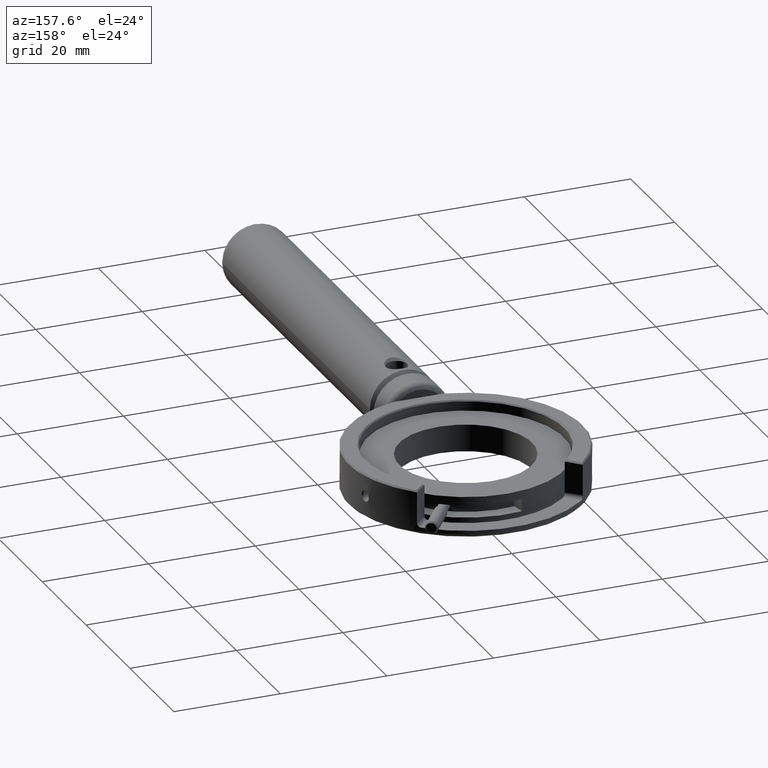
[diagram: clean part render]
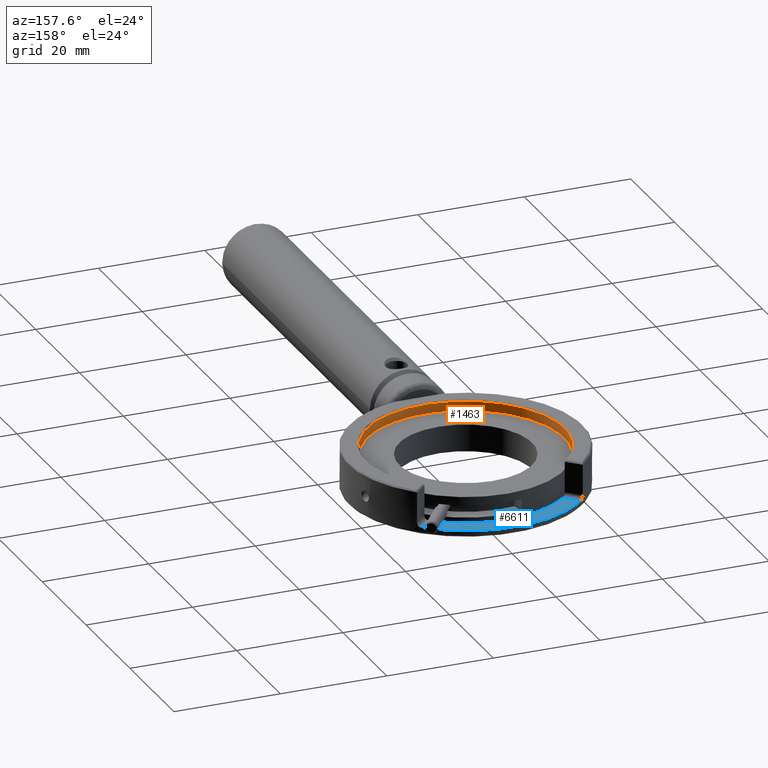
[diagram: same view with the hole feature highlighted: cylindrical wall and planar end face, labeled with their STEP entity ids]
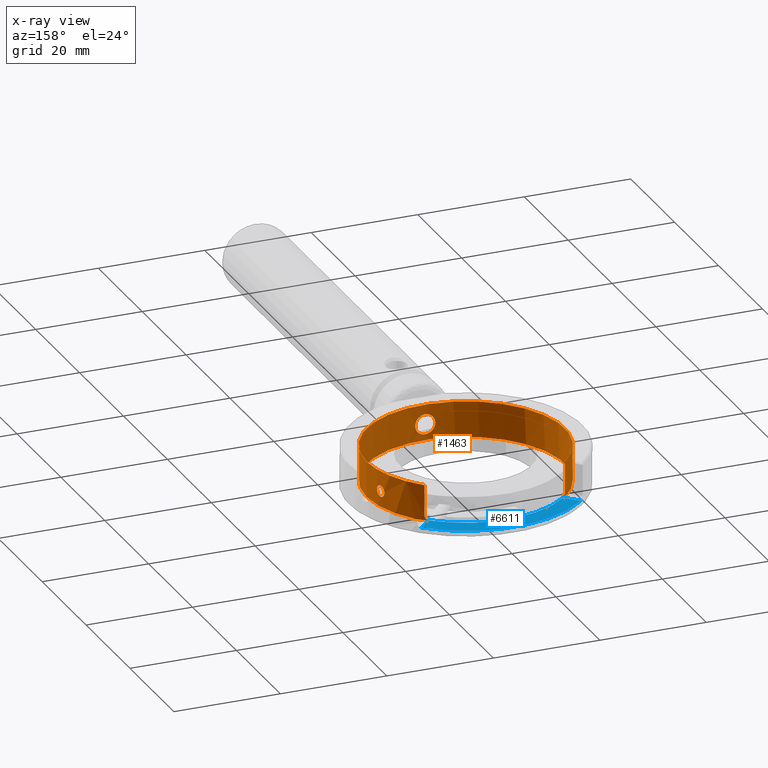
[diagram: x-ray of the same camera — body ghosted, the hole faces saturated]
A machine part, auxiliary view. The highlighted faces form one hole feature of diameter 37.25 mm: the cylindrical wall (entity #1463, orange) and its adjacent planar end face (entity #6611, blue) — they share a circular edge in the B-rep.
The next image is the same camera in x-ray (body ghosted, the hole faces saturated) — the bore reads through the body.
Wall:
#2 = CARTESIAN_POINT ( 'NONE',  ( -18.18903566513872150, 62.83797185100250005, -0.2718343175253222777 ) ) ;
#90 = CARTESIAN_POINT ( 'NONE',  ( -1.493598881237906850, 40.43781706722261760, 1.154478071732000677 ) ) ;
#112 = CARTESIAN_POINT ( 'NONE',  ( -17.69285917023473687, 64.71003680628408006, -0.5450800826894649509 ) ) ;
#126 = B_SPLINE_CURVE_WITH_KNOTS ( 'NONE', 3,
 ( #4490, #5595, #721, #1322, #389, #255, #2989, #6236 ),
 .UNSPECIFIED., .F., .F.,
 ( 4, 2, 2, 4 ),
 ( 0.000000000000000000, 0.0002929533739143705341, 0.0005859067478287410683, 0.001171813495657500785 ),
 .UNSPECIFIED. ) ;
#154 = ORIENTED_EDGE ( 'NONE', *, *, #816, .F. ) ;
#190 = B_SPLINE_CURVE_WITH_KNOTS ( 'NONE', 3,
 ( #3878, #6516, #649, #3913, #2769, #3806, #6090, #2697, #4377, #4874, #5482, #4337, #3380, #1211, #539, #1741, #2, #2840, #2160, #1175, #4981, #5984, #1709, #3272, #4910, #1673, #1102, #112, #1139, #2304 ),
 .UNSPECIFIED., .T., .F.,
 ( 4, 2, 2, 2, 2, 2, 2, 2, 2, 2, 2, 2, 2, 2, 4 ),
 ( 0.000000000000000000, 0.0004075500732926252913, 0.0008151001465852505826, 0.001222650219877875711, 0.001630200293170501165, 0.002037750366463126402, 0.002445300439755751423, 0.003260400586341003198, 0.003667950659633628218, 0.004075500732926253672, 0.004483050806218878692, 0.004890600879511503712, 0.005298150952804129600, 0.005705701026096754620, 0.006520801172682035018 ),
 .UNSPECIFIED. ) ;
#255 = CARTESIAN_POINT ( 'NONE',  ( 13.14876128136733513, 72.22775169575534449, -2.442323651602798851 ) ) ;
#389 = CARTESIAN_POINT ( 'NONE',  ( 13.00023674608519464, 72.37280933934376037, -2.649717255482476830 ) ) ;
#395 = CARTESIAN_POINT ( 'NONE',  ( -13.11979043504704912, 72.18366598657144095, -2.246255909490364466 ) ) ;
#421 = CARTESIAN_POINT ( 'NONE',  ( -1.687117925939663809, 40.45485000283076715, -0.8368279701109370139 ) ) ;
#476 = CARTESIAN_POINT ( 'NONE',  ( -1.148054761256436462, 40.41241583791327230, 1.506858112928590510 ) ) ;
#479 = CARTESIAN_POINT ( 'NONE',  ( 18.26698131764925392, 62.81225203399079504, -0.001122175928722145624 ) ) ;
#492 = CARTESIAN_POINT ( 'NONE',  ( 0.1265221551106720244, 40.37480044073441121, -1.899909461258234566 ) ) ;
#496 = CIRCLE ( 'NONE', #2664, 18.62500000000000355 ) ;
#515 = CARTESIAN_POINT ( 'NONE',  ( -1.629227357032124957, 40.44949484249324456, 0.9474612694294081150 ) ) ;
#518 = CARTESIAN_POINT ( 'NONE',  ( 17.85043235880006307, 64.43661301889852666, -0.8364481478037708584 ) ) ;
#533 = CARTESIAN_POINT ( 'NONE',  ( 1.875467317419478253, 40.46602775634175941, -0.1207899398548696879 ) ) ;
#539 = CARTESIAN_POINT ( 'NONE',  ( -18.19430068289457836, 62.81253746879902877, 0.2767238134697624363 ) ) ;
#557 = CARTESIAN_POINT ( 'NONE',  ( 18.26701105909840450, 62.81210980662360299, 0.1366850002386902907 ) ) ;
#587 = CARTESIAN_POINT ( 'NONE',  ( -13.13355332614390747, 72.16986379959939768, 3.749999999999995559 ) ) ;
#625 = CARTESIAN_POINT ( 'NONE',  ( -0.9446250207710485958, 40.40057066606562586, 1.645620153697293198 ) ) ;
#629 = CARTESIAN_POINT ( 'NONE',  ( 18.06136347873978920, 63.69111709359957985, -1.050266886668898891 ) ) ;
#649 = CARTESIAN_POINT ( 'NONE',  ( -17.66628890700315679, 64.78888973563346099, 0.2718428124325545370 ) ) ;
#721 = CARTESIAN_POINT ( 'NONE',  ( 12.80886262418664856, 72.55583943451092921, -2.780538200181480679 ) ) ;
#766 = CARTESIAN_POINT ( 'NONE',  ( 18.26698131764925392, 62.81225203399078083, -0.001122175928722213278 ) ) ;
#816 = EDGE_CURVE ( 'NONE', #5098, #5098, #3506, .T. ) ;
#835 = CARTESIAN_POINT ( 'NONE',  ( -17.65803962264381965, 64.81382831503192676, -0.001122175928721345917 ) ) ;
#893 = DIRECTION ( 'NONE',  ( 1.000000000000000000, -1.862790309773752312E-15, 0.000000000000000000 ) ) ;
#916 = CARTESIAN_POINT ( 'NONE',  ( 0.9480742903353519546, 40.39705329811793177, -1.644125691522554167 ) ) ;
#949 = CARTESIAN_POINT ( 'NONE',  ( -1.416881517711991556, 40.43157448648918262, -1.249939383187935737 ) ) ;
#950 = EDGE_LOOP ( 'NONE', ( #154 ) ) ;
#962 = VECTOR ( 'NONE', #6245, 1000.000000000000000 ) ;
#963 = CARTESIAN_POINT ( 'NONE',  ( -13.13355332614390747, 72.16986379959939768, -2.049999999999999378 ) ) ;
#966 = CARTESIAN_POINT ( 'NONE',  ( 0.03631047345558670314, 59.00000000000000000, -2.799999999999999378 ) ) ;
#987 = DIRECTION ( 'NONE',  ( 1.000000000000000000, 0.000000000000000000, 0.000000000000000000 ) ) ;
#1010 = CARTESIAN_POINT ( 'NONE',  ( 18.26692183475095987, 62.81253648872515782, -0.2767365282635472212 ) ) ;
#1022 = CARTESIAN_POINT ( 'NONE',  ( 1.147289151250855177, 40.40788308457158706, 1.508248036965813110 ) ) ;
#1058 = CARTESIAN_POINT ( 'NONE',  ( 1.779830277740764188, 40.45672808304190227, 0.6111520728852752882 ) ) ;
#1085 = CARTESIAN_POINT ( 'NONE',  ( 17.76547183828884258, 64.71006350925047457, 0.5450458191778911887 ) ) ;
#1102 = CARTESIAN_POINT ( 'NONE',  ( -17.77886321414629478, 64.43318961352768781, -0.8395066714681195252 ) ) ;
#1108 = ORIENTED_EDGE ( 'NONE', *, *, #2336, .F. ) ;
#1139 = CARTESIAN_POINT ( 'NONE',  ( -17.65813033630994866, 64.81355222855670206, -0.2767365282634193790 ) ) ;
#1147 = LINE ( 'NONE', #2780, #2205 ) ;
#1152 = CARTESIAN_POINT ( 'NONE',  ( -1.687156400982932514, 40.45485390088452249, 0.8366930723316864382 ) ) ;
#1155 = CARTESIAN_POINT ( 'NONE',  ( 17.88471660271046559, 64.32361633450146599, 0.9170588017128735725 ) ) ;
#1175 = CARTESIAN_POINT ( 'NONE',  ( -18.10947813481439184, 63.19881595776065097, -0.8364481478034490047 ) ) ;
#1211 = CARTESIAN_POINT ( 'NONE',  ( -18.17262541090879324, 62.91952062618339170, 0.5450458191785471085 ) ) ;
#1322 = CARTESIAN_POINT ( 'NONE',  ( 12.94043886982135128, 72.43064933454419929, -2.705363686045393568 ) ) ;
#1365 = VERTEX_POINT ( 'NONE', #835 ) ;
#1398 = CARTESIAN_POINT ( 'NONE',  ( -0.001334091296591290296, 40.37503804334770763, 1.899993746880941581 ) ) ;
#1435 = FACE_OUTER_BOUND ( 'NONE', #4163, .T. ) ;
#1463 = ADVANCED_FACE ( 'NONE', ( #2554, #1435, #4731, #3603, #6911 ), #3663, .F. ) ;
#1486 = CARTESIAN_POINT ( 'NONE',  ( 1.501934228834519436, 40.43195197886504388, 1.164475768243369291 ) ) ;
#1487 = ORIENTED_EDGE ( 'NONE', *, *, #4953, .F. ) ;
#1524 = CARTESIAN_POINT ( 'NONE',  ( 1.496394489365336478, 40.43219645749135793, -1.151939983931909106 ) ) ;
#1546 = CARTESIAN_POINT ( 'NONE',  ( 18.24524017603741299, 62.91954789105880508, -0.5450800826893120732 ) ) ;
#1582 = CARTESIAN_POINT ( 'NONE',  ( 18.24018591345191354, 62.93855153088535559, 0.5254526055875672341 ) ) ;
#1596 = CARTESIAN_POINT ( 'NONE',  ( 1.243466138589879533, 40.41396064173407154, 1.427773043486582294 ) ) ;
#1615 = CARTESIAN_POINT ( 'NONE',  ( -0.001334091296591175153, 40.37503804334771473, 1.899993746880941581 ) ) ;
#1673 = CARTESIAN_POINT ( 'NONE',  ( -17.81209746520803350, 64.32360987938156427, -0.9170492980598287103 ) ) ;
#1709 = CARTESIAN_POINT ( 'NONE',  ( -17.98976151545100421, 63.68720002559373228, -1.049729123360207961 ) ) ;
#1741 = CARTESIAN_POINT ( 'NONE',  ( -18.19439021388780020, 62.81210932027876481, -0.1366769748553796071 ) ) ;
#1893 = EDGE_CURVE ( 'NONE', #6206, #4440, #1147, .T. ) ;
#1907 = ORIENTED_EDGE ( 'NONE', *, *, #6379, .F. ) ;
#1990 = CARTESIAN_POINT ( 'NONE',  ( -13.06643057872880753, 72.23669962186897919, -2.427850749201086344 ) ) ;
#2010 = CARTESIAN_POINT ( 'NONE',  ( 1.863262584512247910, 40.46480528269892574, 0.2482103454169145296 ) ) ;
#2034 = CARTESIAN_POINT ( 'NONE',  ( 0.03631047345558670314, 59.00000000000000000, 3.749999999999992895 ) ) ;
#2045 = CARTESIAN_POINT ( 'NONE',  ( 1.815644897308881234, 40.46017351126361916, 0.4914196852226878076 ) ) ;
#2083 = CARTESIAN_POINT ( 'NONE',  ( 0.2514241880328192402, 40.37585009341874098, -1.887042023731392293 ) ) ;
#2088 = CIRCLE ( 'NONE', #6653, 18.62500000000000355 ) ;
#2120 = CARTESIAN_POINT ( 'NONE',  ( 0.4873917369635250574, 40.38007229320815128, 1.839027725005202285 ) ) ;
#2156 = EDGE_CURVE ( 'NONE', #6612, #4440, #126, .T. ) ;
#2160 = CARTESIAN_POINT ( 'NONE',  ( -18.15147889822096516, 63.01298111566647009, -0.6417790687990692078 ) ) ;
#2205 = VECTOR ( 'NONE', #3316, 1000.000000000000000 ) ;
#2248 = CARTESIAN_POINT ( 'NONE',  ( -0.4893539804623329714, 40.38203037132173989, 1.838217170314532911 ) ) ;
#2304 = CARTESIAN_POINT ( 'NONE',  ( -17.65803962264381965, 64.81382831503191255, -0.001122175928721521991 ) ) ;
#2336 = EDGE_CURVE ( 'NONE', #2498, #6612, #3687, .T. ) ;
#2422 = CARTESIAN_POINT ( 'NONE',  ( 18.66131047345558613, 59.00000000000000000, -2.999999999999999556 ) ) ;
#2498 = VERTEX_POINT ( 'NONE', #3657 ) ;
#2539 = CARTESIAN_POINT ( 'NONE',  ( -0.1230512113425770160, 40.37526374352130887, -1.900078957785468425 ) ) ;
#2554 = FACE_OUTER_BOUND ( 'NONE', #4988, .T. ) ;
#2575 = CARTESIAN_POINT ( 'NONE',  ( -1.779838628781134746, 40.46370057687364863, -0.6083153984944333903 ) ) ;
#2611 = DIRECTION ( 'NONE',  ( -0.000000000000000000, -0.000000000000000000, 1.000000000000000000 ) ) ;
#2622 = ORIENTED_EDGE ( 'NONE', *, *, #6646, .F. ) ;
#2634 = CARTESIAN_POINT ( 'NONE',  ( 18.18210340076006304, 63.19879709334022522, 0.8364320505304182474 ) ) ;
#2651 = CARTESIAN_POINT ( 'NONE',  ( -1.156601835759687447, 40.41242734302039707, -1.515672166492228357 ) ) ;
#2664 = AXIS2_PLACEMENT_3D ( 'NONE', #2691, #2611, #987 ) ;
#2687 = EDGE_LOOP ( 'NONE', ( #1907 ) ) ;
#2691 = CARTESIAN_POINT ( 'NONE',  ( 0.03631047345558670314, 59.00000000000000000, -2.999999999999999556 ) ) ;
#2697 = CARTESIAN_POINT ( 'NONE',  ( -17.88125217308938275, 64.08598229579749272, 1.021542227904479239 ) ) ;
#2714 = CARTESIAN_POINT ( 'NONE',  ( 17.95509027215466702, 64.08171454900100628, 1.022854013593600175 ) ) ;
#2769 = CARTESIAN_POINT ( 'NONE',  ( -17.72126713156678335, 64.61855280239166177, 0.6417735202499825764 ) ) ;
#2780 = CARTESIAN_POINT ( 'NONE',  ( 13.20617427305508329, 72.16986379959939768, -2.799999999999999378 ) ) ;
#2786 = CARTESIAN_POINT ( 'NONE',  ( -0.1261248555550038009, 40.37529026904443441, 1.899871533584694294 ) ) ;
#2802 = VERTEX_POINT ( 'NONE', #4948 ) ;
#2840 = CARTESIAN_POINT ( 'NONE',  ( -18.16756298829855965, 62.93856075097302494, -0.5254780502361294792 ) ) ;
#2871 = DIRECTION ( 'NONE',  ( 0.000000000000000000, 0.000000000000000000, -1.000000000000000000 ) ) ;
#2989 = CARTESIAN_POINT ( 'NONE',  ( 13.20617427305508329, 72.16986379959939768, -2.248113430152316017 ) ) ;
#2993 = CARTESIAN_POINT ( 'NONE',  ( -13.02686749316725567, 72.27587242043038884, -2.511025429269050591 ) ) ;
#3065 = DIRECTION ( 'NONE',  ( 1.000000000000000000, 0.000000000000000000, 0.000000000000000000 ) ) ;
#3082 = CARTESIAN_POINT ( 'NONE',  ( 0.8383245082285857297, 40.39192670097741455, -1.704314953015048761 ) ) ;
#3119 = CARTESIAN_POINT ( 'NONE',  ( 0.6072766082502302210, 40.38340492199187537, 1.802071046590317360 ) ) ;
#3174 = CARTESIAN_POINT ( 'NONE',  ( -0.6087401093063735669, 40.38582362619482069, 1.801247005563673564 ) ) ;
#3177 = CARTESIAN_POINT ( 'NONE',  ( 17.73890914774416672, 64.78889194731929990, -0.2718343175257703082 ) ) ;
#3186 = ORIENTED_EDGE ( 'NONE', *, *, #3671, .T. ) ;
#3190 = CARTESIAN_POINT ( 'NONE',  ( 1.781627383087917238, 40.45689707004331126, -0.6059198034472025318 ) ) ;
#3251 = CARTESIAN_POINT ( 'NONE',  ( -1.874362332178338253, 40.47326379445085820, -0.1228103558477590257 ) ) ;
#3254 = CARTESIAN_POINT ( 'NONE',  ( 18.18129826651482261, 63.20230661490798241, -0.8395066714677927866 ) ) ;
#3272 = CARTESIAN_POINT ( 'NONE',  ( -17.91940188048150873, 63.94989992745701812, -1.050266886669020794 ) ) ;
#3316 = DIRECTION ( 'NONE',  ( 0.000000000000000000, -0.000000000000000000, -1.000000000000000000 ) ) ;
#3320 = CARTESIAN_POINT ( 'NONE',  ( -1.874320749131245245, 40.47325950599910982, 0.2462777723561991039 ) ) ;
#3380 = CARTESIAN_POINT ( 'NONE',  ( -18.10867372453984103, 63.20232247685596150, 0.8395260679279363814 ) ) ;
#3506 = B_SPLINE_CURVE_WITH_KNOTS ( 'NONE', 3,
 ( #479, #557, #6996, #1582, #5389, #2634, #3825, #4854, #4245, #6535, #2714, #1155, #3713, #1085, #4812, #5462, #3177, #5889, #6572, #518, #6426, #5497, #4395, #629, #7030, #6463, #3254, #1546, #1010, #5350 ),
 .UNSPECIFIED., .T., .F.,
 ( 4, 2, 2, 2, 2, 2, 2, 2, 2, 2, 2, 2, 2, 2, 4 ),
 ( 0.000000000000000000, 0.0004075500732927614671, 0.0008151001465855229342, 0.001222650219878284455, 0.001630200293171045868, 0.002037750366463807281, 0.002445300439756568911, 0.003260400586342119492, 0.003667950659634894132, 0.004075500732927670074, 0.004483050806220444280, 0.004890600879513220221, 0.005298150952805995295, 0.005705701026098770369, 0.006520801172684293628 ),
 .UNSPECIFIED. ) ;
#3516 = CARTESIAN_POINT ( 'NONE',  ( 12.66516206805026812, 72.68951176637440881, -2.799999999999999378 ) ) ;
#3569 = AXIS2_PLACEMENT_3D ( 'NONE', #966, #5775, #3065 ) ;
#3595 = CARTESIAN_POINT ( 'NONE',  ( 0.03631047345558670314, 59.00000000000000000, -2.799999999999999378 ) ) ;
#3603 = FACE_BOUND ( 'NONE', #950, .T. ) ;
#3619 = CARTESIAN_POINT ( 'NONE',  ( 1.419471315359839947, 40.42622507036815449, -1.248104235817256269 ) ) ;
#3651 = CARTESIAN_POINT ( 'NONE',  ( -0.6069327613400716803, 40.38575951002343345, -1.801890104738805620 ) ) ;
#3657 = CARTESIAN_POINT ( 'NONE',  ( -12.59254112113909230, 72.68951176637440881, -2.799999999999999378 ) ) ;
#3663 = CYLINDRICAL_SURFACE ( 'NONE', #3569, 18.62500000000000355 ) ;
#3671 = EDGE_CURVE ( 'NONE', #2802, #4327, #4597, .T. ) ;
#3687 = CIRCLE ( 'NONE', #5170, 18.62500000000000355 ) ;
#3691 = CARTESIAN_POINT ( 'NONE',  ( -1.628823053750230621, 40.44945976954485189, -0.9480948113216054463 ) ) ;
#3713 = CARTESIAN_POINT ( 'NONE',  ( 17.85148897861465400, 64.43317407914668138, 0.8395260679276543847 ) ) ;
#3746 = CARTESIAN_POINT ( 'NONE',  ( -1.862391918946888270, 40.47201783131870911, -0.2474653438820650087 ) ) ;
#3762 = CARTESIAN_POINT ( 'NONE',  ( 0.6105028367584376392, 40.38350404765453305, -1.800959679208019359 ) ) ;
#3806 = CARTESIAN_POINT ( 'NONE',  ( -17.77780572007210225, 64.43663151548366841, 0.8364320505301028330 ) ) ;
#3825 = CARTESIAN_POINT ( 'NONE',  ( 18.15589816242937005, 63.31124217455019476, 0.9153803181147832646 ) ) ;
#3833 = ORIENTED_EDGE ( 'NONE', *, *, #5036, .F. ) ;
#3878 = CARTESIAN_POINT ( 'NONE',  ( -17.65803962264381965, 64.81382831503191255, -0.001122175928721521991 ) ) ;
#3913 = CARTESIAN_POINT ( 'NONE',  ( -17.69798387035145737, 64.69105204013756349, 0.5254526055873975920 ) ) ;
#4059 = CARTESIAN_POINT ( 'NONE',  ( -12.87845322328645992, 72.42082829419004497, -2.718566659285992948 ) ) ;
#4064 = CARTESIAN_POINT ( 'NONE',  ( -13.13355332614390747, 72.16986379959939768, -2.799999999999999378 ) ) ;
#4079 = B_SPLINE_CURVE_WITH_KNOTS ( 'NONE', 3,
 ( #963, #5199, #395, #1990, #2993, #4059, #5803, #5167 ),
 .UNSPECIFIED., .F., .F.,
 ( 4, 2, 2, 4 ),
 ( 0.000000000000000000, 0.0002929527879731416750, 0.0005859055759462833499, 0.001171811151892563881 ),
 .UNSPECIFIED. ) ;
#4163 = EDGE_LOOP ( 'NONE', ( #1487 ) ) ;
#4183 = CARTESIAN_POINT ( 'NONE',  ( -0.9498293425854421601, 40.39971783078559753, -1.656952140811636331 ) ) ;
#4219 = CARTESIAN_POINT ( 'NONE',  ( 1.875150168842033560, 40.46599628790195879, 0.1257631728962106676 ) ) ;
#4245 = CARTESIAN_POINT ( 'NONE',  ( 18.06238800954402635, 63.68717886780472526, 1.049727377025206243 ) ) ;
#4295 = CARTESIAN_POINT ( 'NONE',  ( 1.640671694744150866, 40.44399480361280297, 0.9527606903303080799 ) ) ;
#4327 = VERTEX_POINT ( 'NONE', #587 ) ;
#4331 = CARTESIAN_POINT ( 'NONE',  ( 0.1234566729618218756, 40.37478581765099506, 1.900115960177189089 ) ) ;
#4337 = CARTESIAN_POINT ( 'NONE',  ( -18.08267081879165161, 63.31381607894787322, 0.9170588017129244207 ) ) ;
#4377 = CARTESIAN_POINT ( 'NONE',  ( -17.91832003728720224, 63.95382279644420720, 1.049727377025160502 ) ) ;
#4395 = CARTESIAN_POINT ( 'NONE',  ( 17.99094675909270435, 63.95380169966966122, -1.049729123360370941 ) ) ;
#4440 = VERTEX_POINT ( 'NONE', #5181 ) ;
#4490 = CARTESIAN_POINT ( 'NONE',  ( 12.66516206805026812, 72.68951176637440881, -2.799999999999999378 ) ) ;
#4597 = LINE ( 'NONE', #4064, #962 ) ;
#4658 = EDGE_LOOP ( 'NONE', ( #3833 ) ) ;
#4731 = FACE_BOUND ( 'NONE', #4658, .T. ) ;
#4785 = CARTESIAN_POINT ( 'NONE',  ( -0.001334091296591175153, 40.37503804334771473, 1.899993746880941581 ) ) ;
#4812 = CARTESIAN_POINT ( 'NONE',  ( 17.73075159577036430, 64.81355127731502819, 0.2767238134690633844 ) ) ;
#4854 = CARTESIAN_POINT ( 'NONE',  ( 18.09636604716132879, 63.55419145191443420, 1.021542227904548072 ) ) ;
#4874 = CARTESIAN_POINT ( 'NONE',  ( -17.98874011551002638, 63.69112655351533192, 1.050268565642877627 ) ) ;
#4910 = CARTESIAN_POINT ( 'NONE',  ( -17.88246208182193087, 64.08173968292686595, -1.022855265444060358 ) ) ;
#4948 = CARTESIAN_POINT ( 'NONE',  ( -13.13355332614390747, 72.16986379959939768, -2.049999999999999378 ) ) ;
#4953 = EDGE_CURVE ( 'NONE', #5235, #5235, #496, .T. ) ;
#4961 = CARTESIAN_POINT ( 'NONE',  ( -1.825853497592056396, 40.46809243590318772, 0.4949905336533694800 ) ) ;
#4981 = CARTESIAN_POINT ( 'NONE',  ( -18.08327356830364252, 63.31125750638018701, -0.9153785940717432679 ) ) ;
#4988 = EDGE_LOOP ( 'NONE', ( #2622, #5820, #5650, #1108, #5528, #3186 ) ) ;
#5036 = EDGE_CURVE ( 'NONE', #6278, #6278, #6723, .T. ) ;
#5098 = VERTEX_POINT ( 'NONE', #766 ) ;
#5167 = CARTESIAN_POINT ( 'NONE',  ( -12.59254112113909230, 72.68951176637440881, -2.799999999999999378 ) ) ;
#5170 = AXIS2_PLACEMENT_3D ( 'NONE', #3595, #5767, #893 ) ;
#5181 = CARTESIAN_POINT ( 'NONE',  ( 13.20617427305508151, 72.16986379959939768, -2.049999999999999822 ) ) ;
#5199 = CARTESIAN_POINT ( 'NONE',  ( -13.13355332614390392, 72.16986379959941189, -2.149056856529656834 ) ) ;
#5235 = VERTEX_POINT ( 'NONE', #2422 ) ;
#5292 = CARTESIAN_POINT ( 'NONE',  ( -1.493860105362722068, 40.43783982116093512, -1.154062898103440427 ) ) ;
#5350 = CARTESIAN_POINT ( 'NONE',  ( 18.26698131764925392, 62.81225203399079504, -0.001122175928722145624 ) ) ;
#5363 = CARTESIAN_POINT ( 'NONE',  ( 0.4931173797224304156, 40.38021049787627703, -1.837479802201849699 ) ) ;
#5389 = CARTESIAN_POINT ( 'NONE',  ( 18.22410019027436689, 63.01297934313601701, 0.6417735202502077296 ) ) ;
#5402 = CARTESIAN_POINT ( 'NONE',  ( 0.8350665305770599289, 40.39178666860223643, 1.705947029544689020 ) ) ;
#5462 = CARTESIAN_POINT ( 'NONE',  ( 17.73061505762472478, 64.81396683030696693, -0.1366769748559309716 ) ) ;
#5482 = CARTESIAN_POINT ( 'NONE',  ( -18.02266531153761875, 63.55849600513413833, 1.022854013593933908 ) ) ;
#5497 = CARTESIAN_POINT ( 'NONE',  ( 17.95387748234327319, 64.08596693016338008, -1.021556855898858363 ) ) ;
#5528 = ORIENTED_EDGE ( 'NONE', *, *, #5862, .F. ) ;
#5595 = CARTESIAN_POINT ( 'NONE',  ( 12.73796892238559053, 72.62234597009461368, -2.799999999999999378 ) ) ;
#5650 = ORIENTED_EDGE ( 'NONE', *, *, #2156, .F. ) ;
#5767 = DIRECTION ( 'NONE',  ( 0.000000000000000000, 0.000000000000000000, -1.000000000000000000 ) ) ;
#5775 = DIRECTION ( 'NONE',  ( -0.000000000000000000, -0.000000000000000000, 1.000000000000000000 ) ) ;
#5793 = CARTESIAN_POINT ( 'NONE',  ( 1.245263015490024605, 40.41407299050415247, -1.426306108848900411 ) ) ;
#5803 = CARTESIAN_POINT ( 'NONE',  ( -12.73815576152182594, 72.55517931429157841, -2.800000000000000266 ) ) ;
#5820 = ORIENTED_EDGE ( 'NONE', *, *, #1893, .T. ) ;
#5862 = EDGE_CURVE ( 'NONE', #2802, #2498, #4079, .T. ) ;
#5866 = CARTESIAN_POINT ( 'NONE',  ( -1.814926088658667780, 40.46721507142064667, -0.4904557182570392082 ) ) ;
#5889 = CARTESIAN_POINT ( 'NONE',  ( 17.77060771409861673, 64.69104306618599765, -0.5254780502365363759 ) ) ;
#5902 = CARTESIAN_POINT ( 'NONE',  ( 1.630828696695630242, 40.44325768453775538, -0.9462198000069470538 ) ) ;
#5921 = CARTESIAN_POINT ( 'NONE',  ( -1.244329723299910873, 40.41887934802588234, 1.426151636347169571 ) ) ;
#5938 = CARTESIAN_POINT ( 'NONE',  ( 1.816495784479431608, 40.46025557840935249, -0.4880107905592776518 ) ) ;
#5984 = CARTESIAN_POINT ( 'NONE',  ( -18.02374119533290298, 63.55420694011440474, -1.021556855898714700 ) ) ;
#6033 = CARTESIAN_POINT ( 'NONE',  ( -0.2486520917217658888, 40.37679102439787471, 1.887247632237436967 ) ) ;
#6090 = CARTESIAN_POINT ( 'NONE',  ( -17.81133385857043550, 64.32614859945991270, 0.9153803181145110379 ) ) ;
#6206 = VERTEX_POINT ( 'NONE', #6430 ) ;
#6236 = CARTESIAN_POINT ( 'NONE',  ( 13.20617427305508151, 72.16986379959939768, -2.049999999999999822 ) ) ;
#6245 = DIRECTION ( 'NONE',  ( 0.000000000000000000, 0.000000000000000000, 1.000000000000000000 ) ) ;
#6278 = VERTEX_POINT ( 'NONE', #1398 ) ;
#6361 = CARTESIAN_POINT ( 'NONE',  ( 0.9430409741492982167, 40.39680337096370977, 1.647141196899822413 ) ) ;
#6379 = EDGE_CURVE ( 'NONE', #1365, #1365, #190, .T. ) ;
#6398 = CARTESIAN_POINT ( 'NONE',  ( 1.150891734442273329, 40.40810262873921488, -1.505372948183611781 ) ) ;
#6426 = CARTESIAN_POINT ( 'NONE',  ( 17.88395931281642248, 64.32613349809764713, -0.9153785940719182390 ) ) ;
#6430 = CARTESIAN_POINT ( 'NONE',  ( 13.20617427305508151, 72.16986379959939768, 3.749999999999992895 ) ) ;
#6440 = CARTESIAN_POINT ( 'NONE',  ( -0.4893759601357342559, 40.38202828292902069, -1.838239511224675216 ) ) ;
#6463 = CARTESIAN_POINT ( 'NONE',  ( 18.15529010513706609, 63.31382257394913182, -0.9170492980596194332 ) ) ;
#6494 = CARTESIAN_POINT ( 'NONE',  ( -0.8368250905406769968, 40.39512734210918410, 1.704595079315016193 ) ) ;
#6510 = CARTESIAN_POINT ( 'NONE',  ( 1.863516063400208811, 40.46483065382025046, -0.2459570079840687484 ) ) ;
#6516 = CARTESIAN_POINT ( 'NONE',  ( -17.65799426581075338, 64.81396635826951069, 0.1366850002386225393 ) ) ;
#6535 = CARTESIAN_POINT ( 'NONE',  ( 17.99202546475702391, 63.94989052677124874, 1.050268565642848984 ) ) ;
#6568 = CARTESIAN_POINT ( 'NONE',  ( -1.416594969207920052, 40.43155499856156609, 1.250186414052594452 ) ) ;
#6572 = CARTESIAN_POINT ( 'NONE',  ( 17.79388866584139706, 64.61855109476366010, -0.6417790687993589760 ) ) ;
#6612 = VERTEX_POINT ( 'NONE', #3516 ) ;
#6646 = EDGE_CURVE ( 'NONE', #6206, #4327, #2088, .T. ) ;
#6653 = AXIS2_PLACEMENT_3D ( 'NONE', #2034, #2871, #6761 ) ;
#6723 = B_SPLINE_CURVE_WITH_KNOTS ( 'NONE', 3,
 ( #4785, #4331, #6931, #2120, #3119, #5402, #6361, #1022, #1596, #1486, #4295, #1058, #2045, #2010, #4219, #533, #6510, #5938, #3190, #6967, #5902, #1524, #3619, #5793, #6398, #916, #3082, #3762, #5363, #2083, #492, #2539, #6897, #6440, #3651, #4183, #2651, #949, #5292, #3691, #421, #2575, #5866, #3746, #3251, #3320, #4961, #1152, #515, #90, #6568, #5921, #476, #625, #6494, #3174, #2248, #6033, #2786, #1615 ),
 .UNSPECIFIED., .T., .F.,
 ( 4, 2, 2, 2, 2, 2, 2, 2, 2, 2, 2, 2, 2, 2, 2, 2, 2, 2, 2, 2, 2, 2, 2, 2, 2, 2, 2, 2, 2, 4 ),
 ( 0.000000000000000000, 0.0003690642282103406011, 0.0007381284564206812022, 0.001107192684631021695, 0.001476256912841362404, 0.002214385369262043390, 0.002583449597472383882, 0.002952513825682724809, 0.003321578053893065301, 0.003690642282103405794, 0.004059706510313746720, 0.004428770738524085912, 0.004797834966734425971, 0.005166899194944766030, 0.005535963423155106089, 0.005905027651365445281, 0.006274091879575785340, 0.006643156107786126266, 0.007381284564206808119, 0.007750348792417146443, 0.008119413020627486502, 0.008488477248837824826, 0.008857541477048164885, 0.009595669933468843268, 0.009964734161679183327, 0.01033379838988952339, 0.01070286261809986345, 0.01107192684631020177, 0.01144099107452054183, 0.01181005530273088015 ),
 .UNSPECIFIED. ) ;
#6761 = DIRECTION ( 'NONE',  ( 1.000000000000000000, 0.000000000000000000, 0.000000000000000000 ) ) ;
#6897 = CARTESIAN_POINT ( 'NONE',  ( -0.2478376636942797029, 40.37677587203894092, -1.887386664007038251 ) ) ;
#6911 = FACE_BOUND ( 'NONE', #2687, .T. ) ;
#6931 = CARTESIAN_POINT ( 'NONE',  ( 0.2461240010171151793, 40.37579101287534655, 1.887737667740784886 ) ) ;
#6967 = CARTESIAN_POINT ( 'NONE',  ( 1.688798273568649977, 40.44839410033475957, -0.8354089437441327703 ) ) ;
#6996 = CARTESIAN_POINT ( 'NONE',  ( 18.26165611776828612, 62.83797411946373757, 0.2718428124326822126 ) ) ;
#7030 = CARTESIAN_POINT ( 'NONE',  ( 18.09529255242488333, 63.55847061680420751, -1.022855265443894490 ) ) ;
End face:
#113 = DIRECTION ( 'NONE',  ( -1.000000000000000000, 0.000000000000000000, 0.000000000000000000 ) ) ;
#177 = CARTESIAN_POINT ( 'NONE',  ( -14.98066628139066481, 75.07763692662597066, -2.799999999999999378 ) ) ;
#545 = VERTEX_POINT ( 'NONE', #5816 ) ;
#724 = CARTESIAN_POINT ( 'NONE',  ( 12.66516206805026812, 72.68951176637440881, -2.799999999999999378 ) ) ;
#893 = DIRECTION ( 'NONE',  ( 1.000000000000000000, -1.862790309773752312E-15, 0.000000000000000000 ) ) ;
#1014 = VERTEX_POINT ( 'NONE', #1858 ) ;
#1176 = CARTESIAN_POINT ( 'NONE',  ( 0.03631047345558670314, 59.00000000000000000, -2.799999999999999378 ) ) ;
#1188 = DIRECTION ( 'NONE',  ( 0.7071067811865486830, 0.7071067811865464625, 0.000000000000000000 ) ) ;
#1190 = AXIS2_PLACEMENT_3D ( 'NONE', #4045, #3547, #2978 ) ;
#1379 = PLANE ( 'NONE',  #1190 ) ;
#1464 = ORIENTED_EDGE ( 'NONE', *, *, #5693, .T. ) ;
#1643 = VECTOR ( 'NONE', #1188, 999.9999999999998863 ) ;
#1668 = LINE ( 'NONE', #177, #6529 ) ;
#1674 = DIRECTION ( 'NONE',  ( -0.000000000000000000, -0.000000000000000000, -1.000000000000000000 ) ) ;
#1856 = ORIENTED_EDGE ( 'NONE', *, *, #4423, .T. ) ;
#1858 = CARTESIAN_POINT ( 'NONE',  ( 15.05328722830184063, 75.07763692662597066, -2.799999999999999378 ) ) ;
#2336 = EDGE_CURVE ( 'NONE', #2498, #6612, #3687, .T. ) ;
#2498 = VERTEX_POINT ( 'NONE', #3657 ) ;
#2564 = FACE_OUTER_BOUND ( 'NONE', #4452, .T. ) ;
#2783 = AXIS2_PLACEMENT_3D ( 'NONE', #1176, #1674, #113 ) ;
#2813 = EDGE_CURVE ( 'NONE', #545, #1014, #6654, .T. ) ;
#2978 = DIRECTION ( 'NONE',  ( 1.000000000000000000, 0.000000000000000000, -0.000000000000000000 ) ) ;
#3489 = ORIENTED_EDGE ( 'NONE', *, *, #2813, .F. ) ;
#3516 = CARTESIAN_POINT ( 'NONE',  ( 12.66516206805026812, 72.68951176637440881, -2.799999999999999378 ) ) ;
#3547 = DIRECTION ( 'NONE',  ( 0.000000000000000000, 0.000000000000000000, 1.000000000000000000 ) ) ;
#3595 = CARTESIAN_POINT ( 'NONE',  ( 0.03631047345558670314, 59.00000000000000000, -2.799999999999999378 ) ) ;
#3657 = CARTESIAN_POINT ( 'NONE',  ( -12.59254112113909230, 72.68951176637440881, -2.799999999999999378 ) ) ;
#3687 = CIRCLE ( 'NONE', #5170, 18.62500000000000355 ) ;
#4045 = CARTESIAN_POINT ( 'NONE',  ( 0.03631047345558670314, 59.00000000000000000, -2.799999999999999378 ) ) ;
#4423 = EDGE_CURVE ( 'NONE', #545, #2498, #1668, .T. ) ;
#4452 = EDGE_LOOP ( 'NONE', ( #3489, #1856, #5663, #1464 ) ) ;
#5170 = AXIS2_PLACEMENT_3D ( 'NONE', #3595, #5767, #893 ) ;
#5598 = LINE ( 'NONE', #724, #1643 ) ;
#5663 = ORIENTED_EDGE ( 'NONE', *, *, #2336, .T. ) ;
#5693 = EDGE_CURVE ( 'NONE', #6612, #1014, #5598, .T. ) ;
#5767 = DIRECTION ( 'NONE',  ( 0.000000000000000000, 0.000000000000000000, -1.000000000000000000 ) ) ;
#5816 = CARTESIAN_POINT ( 'NONE',  ( -14.98066628139066658, 75.07763692662597066, -2.799999999999999378 ) ) ;
#6529 = VECTOR ( 'NONE', #6549, 999.9999999999998863 ) ;
#6549 = DIRECTION ( 'NONE',  ( 0.7071067811865486830, -0.7071067811865464625, 0.000000000000000000 ) ) ;
#6611 = ADVANCED_FACE ( 'NONE', ( #2564 ), #1379, .T. ) ;
#6612 = VERTEX_POINT ( 'NONE', #3516 ) ;
#6654 = CIRCLE ( 'NONE', #2783, 22.00000000000000000 ) ;